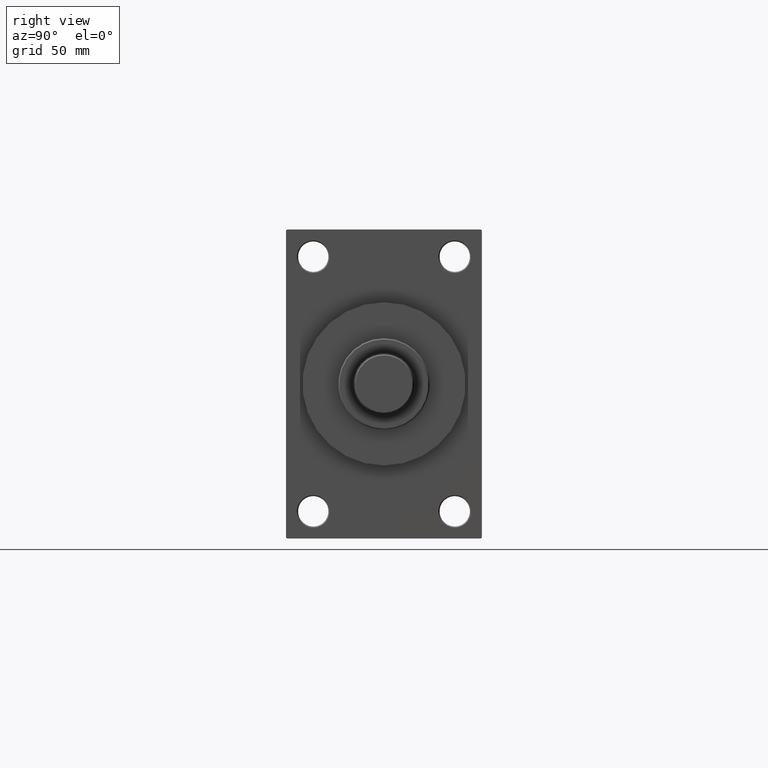
[diagram: clean part render]
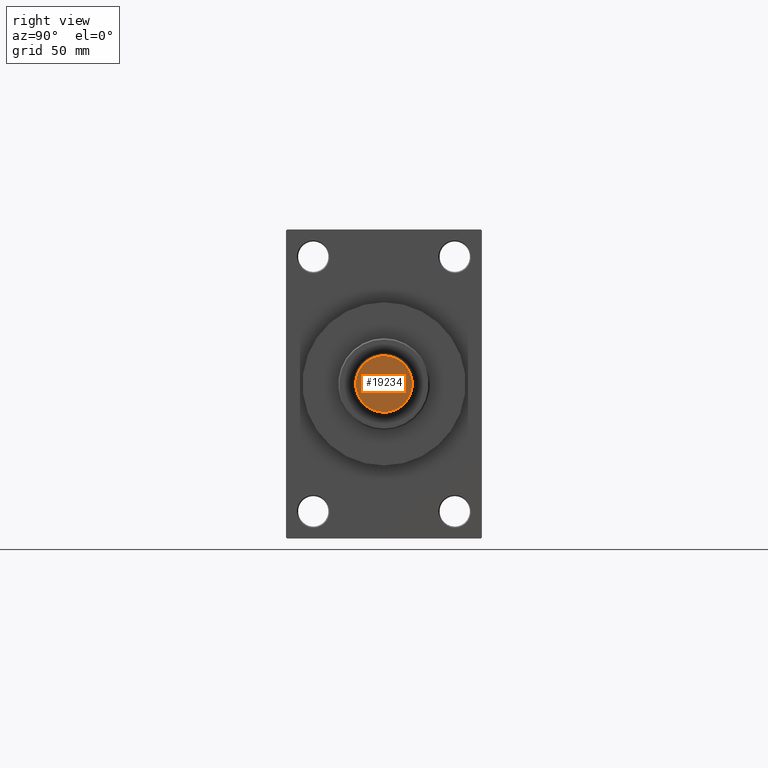
[diagram: same view with one face highlighted and labeled with its STEP entity id]
A machine part, right view. The second image highlights one B-rep face of the part: STEP entity #19234.
In plain terms, the highlighted planar face has unit normal (1, 0, 0).
Its self-contained STEP definition (entity closure, byte-faithful):
#4442 = VERTEX_POINT ( 'NONE', #14037 ) ;
#4504 = DIRECTION ( 'NONE',  ( 1.000000000000000000, 0.000000000000000000, -0.000000000000000000 ) ) ;
#7867 = CARTESIAN_POINT ( 'NONE',  ( 0.000000000000000000, 0.000000000000000000, 0.000000000000000000 ) ) ;
#8582 = CARTESIAN_POINT ( 'NONE',  ( 0.000000000000000000, 0.000000000000000000, 0.000000000000000000 ) ) ;
#10795 = AXIS2_PLACEMENT_3D ( 'NONE', #8582, #41629, #26418 ) ;
#12134 = EDGE_LOOP ( 'NONE', ( #31466, #20899 ) ) ;
#14037 = CARTESIAN_POINT ( 'NONE',  ( 13.00000000000000000, 0.000000000000000000, 0.000000000000000000 ) ) ;
#14290 = AXIS2_PLACEMENT_3D ( 'NONE', #7867, #22344, #4504 ) ;
#19234 = ADVANCED_FACE ( 'NONE', ( #26189 ), #33908, .T. ) ;
#20899 = ORIENTED_EDGE ( 'NONE', *, *, #30320, .T. ) ;
#22344 = DIRECTION ( 'NONE',  ( 0.000000000000000000, 0.000000000000000000, 1.000000000000000000 ) ) ;
#26189 = FACE_OUTER_BOUND ( 'NONE', #12134, .T. ) ;
#26418 = DIRECTION ( 'NONE',  ( 1.000000000000000000, 0.000000000000000000, 0.000000000000000000 ) ) ;
#30320 = EDGE_CURVE ( 'NONE', #31542, #4442, #46975, .T. ) ;
#31466 = ORIENTED_EDGE ( 'NONE', *, *, #40286, .T. ) ;
#31542 = VERTEX_POINT ( 'NONE', #37953 ) ;
#33846 = DIRECTION ( 'NONE',  ( 1.000000000000000000, 0.000000000000000000, 0.000000000000000000 ) ) ;
#33908 = PLANE ( 'NONE',  #14290 ) ;
#35543 = AXIS2_PLACEMENT_3D ( 'NONE', #44940, #41568, #33846 ) ;
#37953 = CARTESIAN_POINT ( 'NONE',  ( -13.00000000000000000, 1.622657008870242882E-15, 0.000000000000000000 ) ) ;
#40286 = EDGE_CURVE ( 'NONE', #4442, #31542, #40917, .T. ) ;
#40917 = CIRCLE ( 'NONE', #35543, 13.00000000000000000 ) ;
#41568 = DIRECTION ( 'NONE',  ( 0.000000000000000000, 0.000000000000000000, 1.000000000000000000 ) ) ;
#41629 = DIRECTION ( 'NONE',  ( 0.000000000000000000, 0.000000000000000000, 1.000000000000000000 ) ) ;
#44940 = CARTESIAN_POINT ( 'NONE',  ( 0.000000000000000000, 0.000000000000000000, 0.000000000000000000 ) ) ;
#46975 = CIRCLE ( 'NONE', #10795, 13.00000000000000000 ) ;